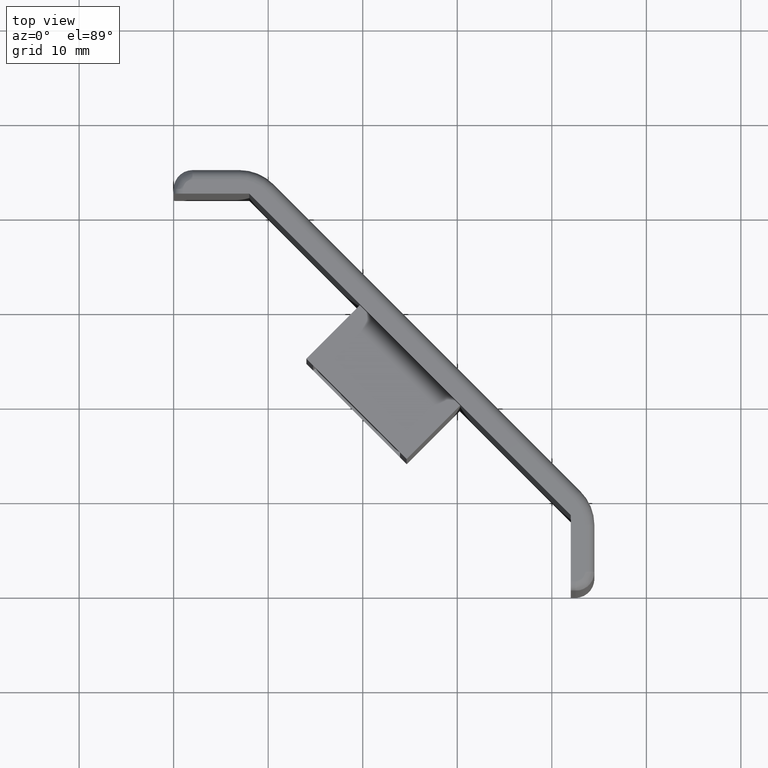
[diagram: clean part render]
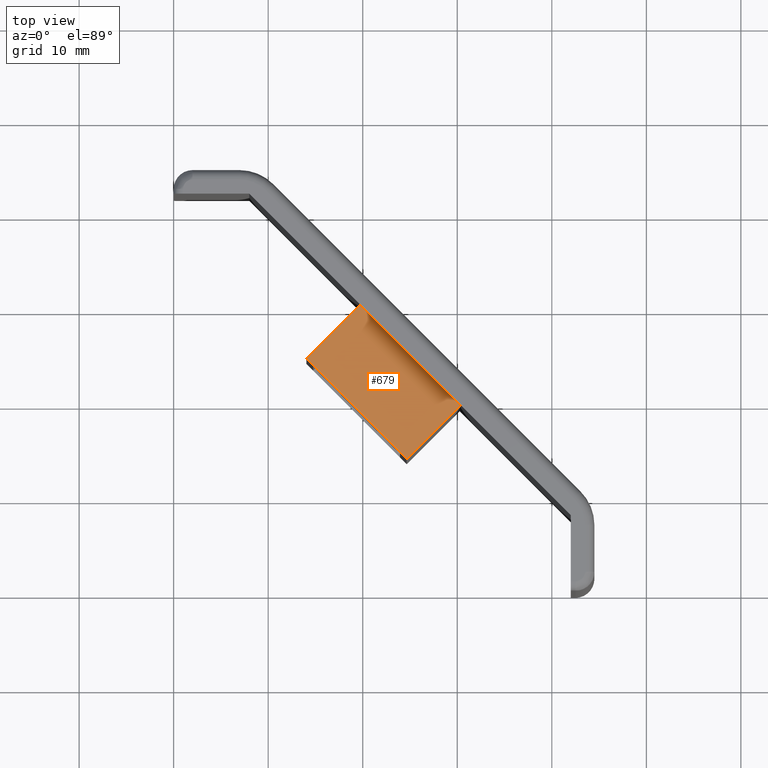
[diagram: same view with one face highlighted and labeled with its STEP entity id]
A machine part, top view. The second image highlights one B-rep face of the part: STEP entity #679.
In plain terms, the highlighted planar face has unit normal (0, 0, -1).
Its self-contained STEP definition (entity closure, byte-faithful):
#59=FACE_OUTER_BOUND('',#102,.T.);
#102=EDGE_LOOP('',(#538,#539,#540,#541));
#148=LINE('',#1052,#210);
#182=LINE('',#1137,#244);
#183=LINE('',#1140,#245);
#186=LINE('',#1145,#248);
#210=VECTOR('',#824,15.);
#244=VECTOR('',#900,8.);
#245=VECTOR('',#903,8.00000000000001);
#248=VECTOR('',#908,15.);
#314=VERTEX_POINT('',#1049);
#315=VERTEX_POINT('',#1051);
#345=VERTEX_POINT('',#1135);
#346=VERTEX_POINT('',#1139);
#376=EDGE_CURVE('',#315,#314,#148,.T.);
#418=EDGE_CURVE('',#345,#314,#182,.T.);
#419=EDGE_CURVE('',#346,#315,#183,.T.);
#422=EDGE_CURVE('',#346,#345,#186,.T.);
#538=ORIENTED_EDGE('',*,*,#376,.T.);
#539=ORIENTED_EDGE('',*,*,#418,.F.);
#540=ORIENTED_EDGE('',*,*,#422,.F.);
#541=ORIENTED_EDGE('',*,*,#419,.T.);
#657=PLANE('',#739);
#679=ADVANCED_FACE('',(#59),#657,.F.);
#739=AXIS2_PLACEMENT_3D('',#1144,#906,#907);
#824=DIRECTION('',(-0.707106781186547,0.707106781186548,0.));
#900=DIRECTION('',(0.707106781186548,0.707106781186547,0.));
#903=DIRECTION('',(0.707106781186548,0.707106781186547,0.));
#906=DIRECTION('center_axis',(0.,0.,-1.));
#907=DIRECTION('ref_axis',(-1.,0.,0.));
#908=DIRECTION('',(-0.707106781186547,0.707106781186548,0.));
#1049=CARTESIAN_POINT('',(19.6966991411009,30.3033008588991,16.));
#1051=CARTESIAN_POINT('',(30.3033008588991,19.6966991411009,16.));
#1052=CARTESIAN_POINT('',(19.6966991411009,30.3033008588991,16.));
#1135=CARTESIAN_POINT('',(14.0398448916085,24.6464466094067,16.));
#1137=CARTESIAN_POINT('',(14.0398448916085,24.6464466094067,16.));
#1139=CARTESIAN_POINT('',(24.6464466094067,14.0398448916085,16.));
#1140=CARTESIAN_POINT('',(24.6464466094067,14.0398448916085,16.));
#1144=CARTESIAN_POINT('Origin',(14.0398448916085,24.6464466094067,16.));
#1145=CARTESIAN_POINT('',(14.0398448916085,24.6464466094067,16.));